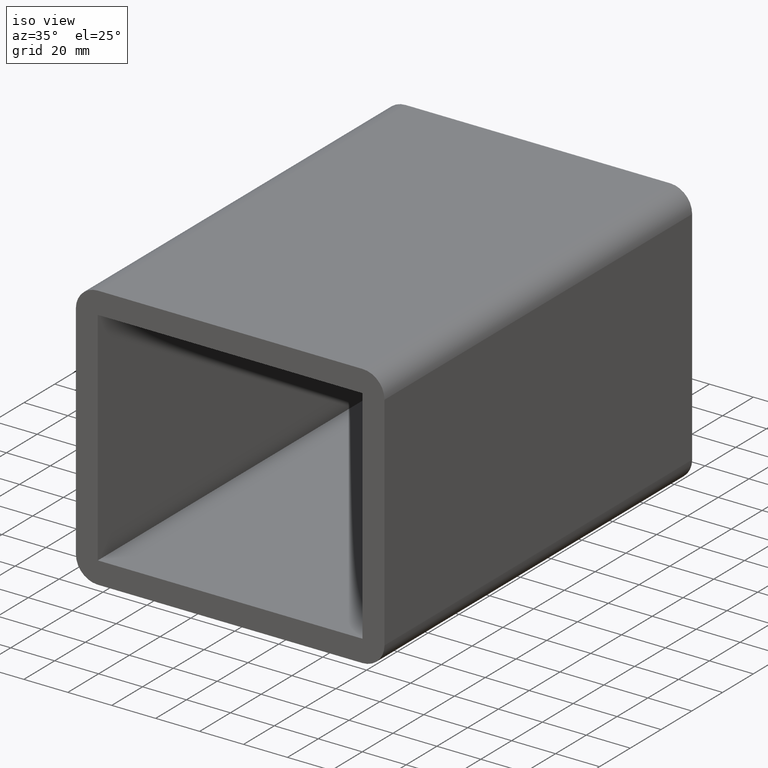
[diagram: clean part render]
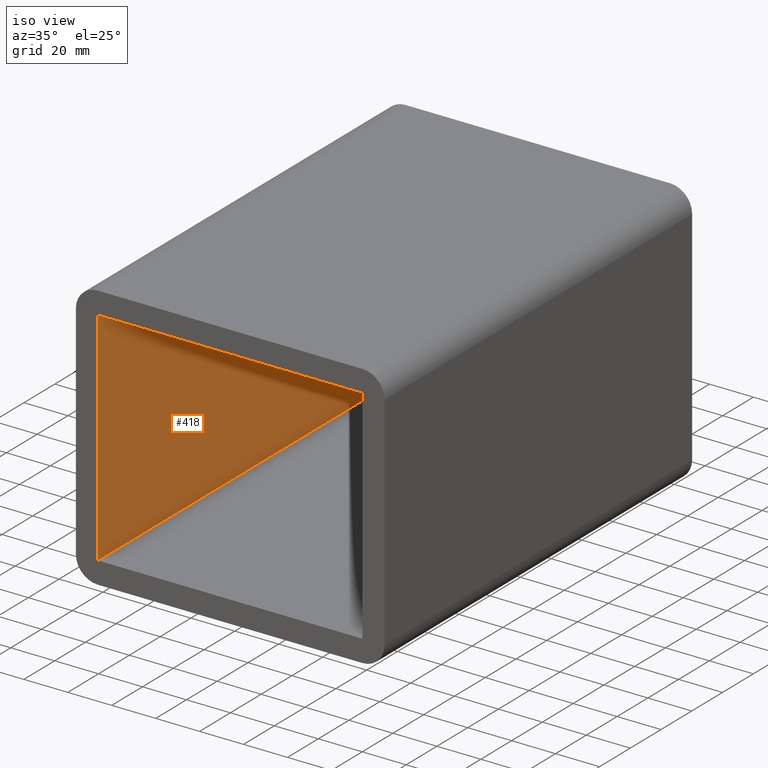
[diagram: same view with one face highlighted and labeled with its STEP entity id]
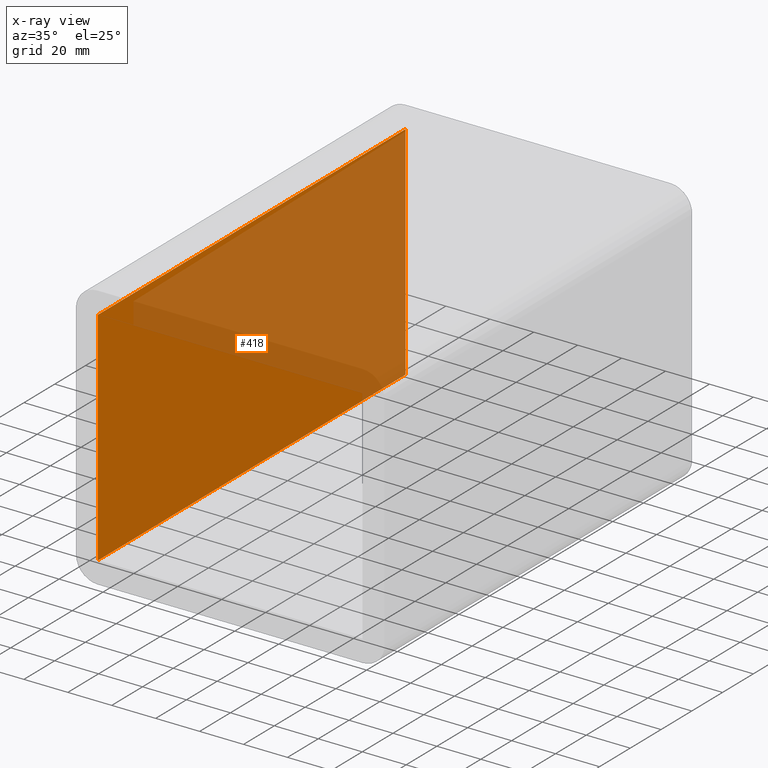
[diagram: x-ray of the same camera — body ghosted, the highlighted face saturated]
A machine part, iso view. The second image highlights one B-rep face of the part: STEP entity #418.
The next image is the same camera in x-ray: the body ghosted, the highlighted face saturated — about 53% of this face is hidden behind the body in this view.
In plain terms, the highlighted planar face has unit normal (-1, 0, 0).
Its self-contained STEP definition (entity closure, byte-faithful):
#185=CARTESIAN_POINT('',(-60.25,-3.0,-50.500000000000014));
#186=VERTEX_POINT('',#185);
#193=CARTESIAN_POINT('',(-60.25,-3.0,50.5));
#194=VERTEX_POINT('',#193);
#195=CARTESIAN_POINT('',(-60.250000000000014,-3.0,-50.500000000000014));
#196=DIRECTION('',(0.0,0.0,1.0));
#197=VECTOR('',#196,101.00000000000003);
#198=LINE('',#195,#197);
#199=EDGE_CURVE('',#186,#194,#198,.T.);
#378=CARTESIAN_POINT('',(-60.25,197.0,50.5));
#379=VERTEX_POINT('',#378);
#380=CARTESIAN_POINT('',(-60.250000000000014,-3.0,50.500000000000007));
#381=DIRECTION('',(0.0,1.0,0.0));
#382=VECTOR('',#381,200.0);
#383=LINE('',#380,#382);
#384=EDGE_CURVE('',#194,#379,#383,.T.);
#395=CARTESIAN_POINT('',(-60.250000000000014,0.0,-50.500000000000014));
#396=DIRECTION('',(-1.0,0.0,0.0));
#397=DIRECTION('',(0.0,0.0,1.0));
#398=AXIS2_PLACEMENT_3D('',#395,#396,#397);
#399=PLANE('',#398);
#400=ORIENTED_EDGE('',*,*,#384,.F.);
#401=ORIENTED_EDGE('',*,*,#199,.F.);
#402=CARTESIAN_POINT('',(-60.25,197.0,-50.500000000000014));
#403=VERTEX_POINT('',#402);
#404=CARTESIAN_POINT('',(-60.250000000000014,-3.0,-50.500000000000014));
#405=DIRECTION('',(0.0,1.0,0.0));
#406=VECTOR('',#405,200.0);
#407=LINE('',#404,#406);
#408=EDGE_CURVE('',#186,#403,#407,.T.);
#409=ORIENTED_EDGE('',*,*,#408,.T.);
#410=CARTESIAN_POINT('',(-60.250000000000014,197.0,50.500000000000007));
#411=DIRECTION('',(0.0,0.0,-1.0));
#412=VECTOR('',#411,101.00000000000003);
#413=LINE('',#410,#412);
#414=EDGE_CURVE('',#379,#403,#413,.T.);
#415=ORIENTED_EDGE('',*,*,#414,.F.);
#416=EDGE_LOOP('',(#400,#401,#409,#415));
#417=FACE_OUTER_BOUND('',#416,.T.);
#418=ADVANCED_FACE('',(#417),#399,.F.);